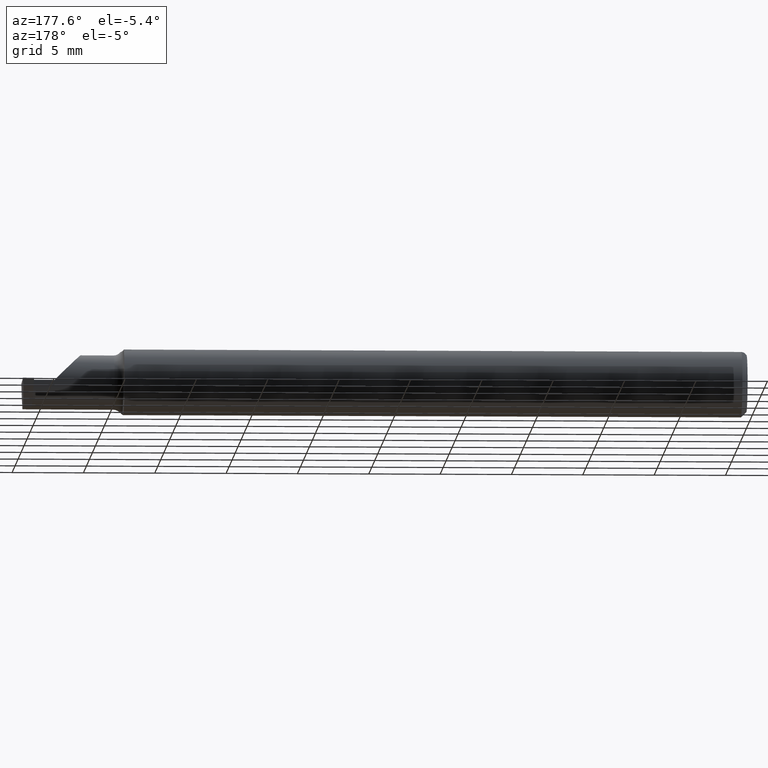
[diagram: clean part render]
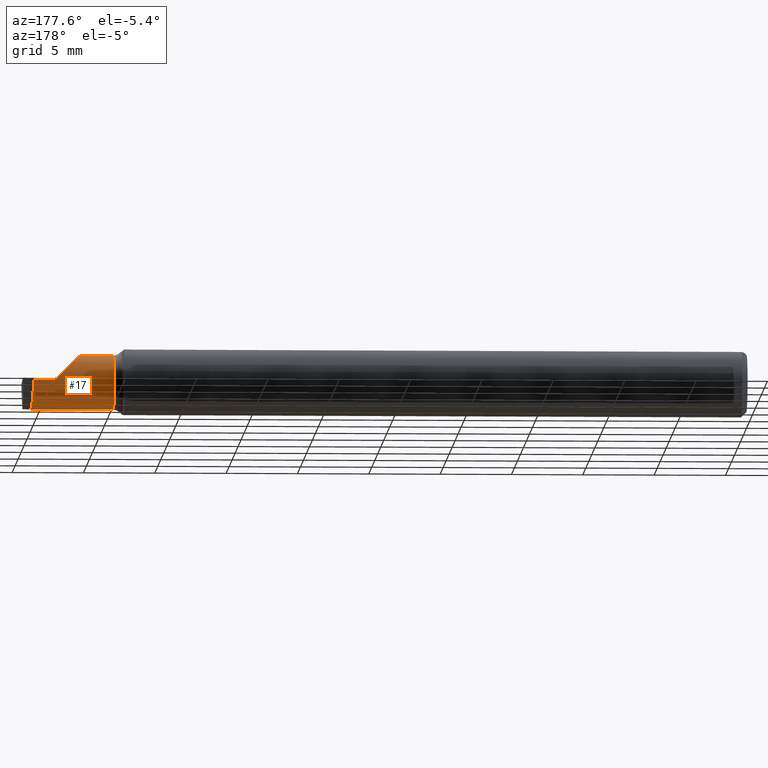
[diagram: same view with one face highlighted and labeled with its STEP entity id]
A machine part, auxiliary view. The second image highlights one B-rep face of the part: STEP entity #17.
In plain terms, the highlighted cylindrical surface (edge-blend (fillet) strip) has radius 1.905 mm, axis along (-1, -0, -0).
Its self-contained STEP definition (entity closure, byte-faithful):
#5 =( BOUNDED_CURVE ( )  B_SPLINE_CURVE ( 3, ( #224, #756, #652, #766 ),
 .UNSPECIFIED., .F., .T. ) 
 B_SPLINE_CURVE_WITH_KNOTS ( ( 4, 4 ),
 ( 0.000000000000000000, 1.570796326794896558 ),
 .UNSPECIFIED. ) 
 CURVE ( )  GEOMETRIC_REPRESENTATION_ITEM ( )  RATIONAL_B_SPLINE_CURVE ( ( 1.000000000000000000, 0.8047378541243649375, 0.8047378541243649375, 1.000000000000000000 ) ) 
 REPRESENTATION_ITEM ( '' )  );
#16 = VERTEX_POINT ( 'NONE', #27 ) ;
#17 = ADVANCED_FACE ( 'NONE', ( #263 ), #505, .T. ) ;
#21 = CARTESIAN_POINT ( 'NONE',  ( 1.744999999999999885, -0.04259999999999998510, 0.000000000000000000 ) ) ;
#27 = CARTESIAN_POINT ( 'NONE',  ( 1.970284083932823727, 0.02994487577554157814, -0.01903262984222200277 ) ) ;
#42 = LINE ( 'NONE', #83, #469 ) ;
#80 = ORIENTED_EDGE ( 'NONE', *, *, #453, .F. ) ;
#83 = CARTESIAN_POINT ( 'NONE',  ( 1.719999999999999973, -0.04259999999999998510, 0.07499999999999999722 ) ) ;
#91 = ORIENTED_EDGE ( 'NONE', *, *, #751, .F. ) ;
#95 = EDGE_CURVE ( 'NONE', #543, #665, #5, .T. ) ;
#96 = ORIENTED_EDGE ( 'NONE', *, *, #107, .F. ) ;
#98 = DIRECTION ( 'NONE',  ( -1.000000000000000000, -0.000000000000000000, -0.000000000000000000 ) ) ;
#107 = EDGE_CURVE ( 'NONE', #16, #498, #408, .T. ) ;
#109 = CIRCLE ( 'NONE', #206, 0.07499999999999999722 ) ;
#117 = CARTESIAN_POINT ( 'NONE',  ( 1.969499999999999806, -0.04259999999999998510, 0.000000000000000000 ) ) ;
#153 = CARTESIAN_POINT ( 'NONE',  ( 1.719999999999999973, 0.03240000000000001906, 3.429011037612604807E-17 ) ) ;
#155 = DIRECTION ( 'NONE',  ( 0.000000000000000000, 0.000000000000000000, 1.000000000000000000 ) ) ;
#158 = CARTESIAN_POINT ( 'NONE',  ( 1.835000000000000409, -0.04259999999999998510, 0.07499999999999999722 ) ) ;
#161 = CARTESIAN_POINT ( 'NONE',  ( 1.973213402547462803, -0.04260000000000001286, -0.07499999999999999722 ) ) ;
#181 = CARTESIAN_POINT ( 'NONE',  ( 1.744999999999999885, -0.04259999999999997122, -0.07500000000000001110 ) ) ;
#183 = ORIENTED_EDGE ( 'NONE', *, *, #600, .T. ) ;
#184 = CARTESIAN_POINT ( 'NONE',  ( 1.969499999999999806, 0.03240000000000000518, 3.428996833357358890E-17 ) ) ;
#206 = AXIS2_PLACEMENT_3D ( 'NONE', #21, #436, #499 ) ;
#207 = CARTESIAN_POINT ( 'NONE',  ( 1.972080687037212954, 0.02094495418688668148, -0.05333678008583653957 ) ) ;
#224 = CARTESIAN_POINT ( 'NONE',  ( 1.835000000000000409, -0.04259999999999998510, 0.07499999999999999722 ) ) ;
#242 = EDGE_LOOP ( 'NONE', ( #80, #310, #91, #539, #518, #708, #183, #96 ) ) ;
#263 = FACE_OUTER_BOUND ( 'NONE', #242, .T. ) ;
#268 = CARTESIAN_POINT ( 'NONE',  ( 1.973213402547462803, -0.04260000000000001286, -0.07499999999999999722 ) ) ;
#310 = ORIENTED_EDGE ( 'NONE', *, *, #317, .T. ) ;
#317 = EDGE_CURVE ( 'NONE', #583, #617, #728, .T. ) ;
#337 = CARTESIAN_POINT ( 'NONE',  ( 1.970027797685394821, 0.03157410243558823187, -0.01282266061343017780 ) ) ;
#354 = VECTOR ( 'NONE', #755, 39.37007874015748143 ) ;
#397 = DIRECTION ( 'NONE',  ( -1.000000000000000000, -0.000000000000000000, -0.000000000000000000 ) ) ;
#408 =( BOUNDED_CURVE ( )  B_SPLINE_CURVE ( 3, ( #508, #337, #753, #582 ),
 .UNSPECIFIED., .F., .T. ) 
 B_SPLINE_CURVE_WITH_KNOTS ( ( 4, 4 ),
 ( 4.455205321888861647, 4.711308219781928486 ),
 .UNSPECIFIED. ) 
 CURVE ( )  GEOMETRIC_REPRESENTATION_ITEM ( )  RATIONAL_B_SPLINE_CURVE ( ( 1.000000000000000000, 0.9945417399294778082, 0.9945417399294778082, 1.000000000000000000 ) ) 
 REPRESENTATION_ITEM ( '' )  );
#409 = CARTESIAN_POINT ( 'NONE',  ( 1.910000000000000142, 0.03240000000000002600, 1.102182119232621301E-17 ) ) ;
#436 = DIRECTION ( 'NONE',  ( -1.000000000000000000, -0.000000000000000000, -0.000000000000000000 ) ) ;
#449 = CARTESIAN_POINT ( 'NONE',  ( 1.969499999999999806, 0.03239999167003589087, -3.534818988851000062E-05 ) ) ;
#451 = LINE ( 'NONE', #153, #354 ) ;
#453 = EDGE_CURVE ( 'NONE', #583, #16, #626, .T. ) ;
#469 = VECTOR ( 'NONE', #397, 39.37007874015748143 ) ;
#491 = VERTEX_POINT ( 'NONE', #752 ) ;
#492 = EDGE_CURVE ( 'NONE', #665, #736, #451, .T. ) ;
#498 = VERTEX_POINT ( 'NONE', #449 ) ;
#499 = DIRECTION ( 'NONE',  ( 0.000000000000000000, 0.000000000000000000, 1.000000000000000000 ) ) ;
#505 = CYLINDRICAL_SURFACE ( 'NONE', #598, 0.07499999999999999722 ) ;
#508 = CARTESIAN_POINT ( 'NONE',  ( 1.970284083932823727, 0.02994487577554157814, -0.01903262984222200277 ) ) ;
#514 = EDGE_CURVE ( 'NONE', #543, #491, #42, .T. ) ;
#518 = ORIENTED_EDGE ( 'NONE', *, *, #95, .T. ) ;
#539 = ORIENTED_EDGE ( 'NONE', *, *, #514, .F. ) ;
#543 = VERTEX_POINT ( 'NONE', #158 ) ;
#582 = CARTESIAN_POINT ( 'NONE',  ( 1.969499999999999806, 0.03239999167003589087, -3.534818988851000062E-05 ) ) ;
#583 = VERTEX_POINT ( 'NONE', #161 ) ;
#598 = AXIS2_PLACEMENT_3D ( 'NONE', #643, #98, #155 ) ;
#600 = EDGE_CURVE ( 'NONE', #736, #498, #772, .T. ) ;
#603 = DIRECTION ( 'NONE',  ( 0.000000000000000000, 0.000000000000000000, 1.000000000000000000 ) ) ;
#617 = VERTEX_POINT ( 'NONE', #181 ) ;
#626 =( BOUNDED_CURVE ( )  B_SPLINE_CURVE ( 3, ( #268, #706, #207, #645 ),
 .UNSPECIFIED., .F., .T. ) 
 B_SPLINE_CURVE_WITH_KNOTS ( ( 4, 4 ),
 ( 3.140983202202990654, 4.455205321888858094 ),
 .UNSPECIFIED. ) 
 CURVE ( )  GEOMETRIC_REPRESENTATION_ITEM ( )  RATIONAL_B_SPLINE_CURVE ( ( 1.000000000000000000, 0.8611734602017921958, 0.8611734602017921958, 1.000000000000000000 ) ) 
 REPRESENTATION_ITEM ( '' )  );
#643 = CARTESIAN_POINT ( 'NONE',  ( 1.719999999999999973, -0.04259999999999998510, 0.000000000000000000 ) ) ;
#645 = CARTESIAN_POINT ( 'NONE',  ( 1.970284083932823727, 0.02994487577554157814, -0.01903262984222200277 ) ) ;
#652 = CARTESIAN_POINT ( 'NONE',  ( 1.866066017177982594, 0.03240000000000000518, 0.04393398282201787380 ) ) ;
#663 = DIRECTION ( 'NONE',  ( -1.000000000000000000, -0.000000000000000000, -0.000000000000000000 ) ) ;
#665 = VERTEX_POINT ( 'NONE', #409 ) ;
#675 = AXIS2_PLACEMENT_3D ( 'NONE', #117, #663, #603 ) ;
#679 = VECTOR ( 'NONE', #740, 39.37007874015748143 ) ;
#688 = CARTESIAN_POINT ( 'NONE',  ( 1.719999999999999973, -0.04259999999999997816, -0.07499999999999999722 ) ) ;
#706 = CARTESIAN_POINT ( 'NONE',  ( 1.973214534726833946, -0.007134900077140466333, -0.07500000000000003886 ) ) ;
#708 = ORIENTED_EDGE ( 'NONE', *, *, #492, .T. ) ;
#728 = LINE ( 'NONE', #688, #679 ) ;
#736 = VERTEX_POINT ( 'NONE', #184 ) ;
#740 = DIRECTION ( 'NONE',  ( -1.000000000000000000, -0.000000000000000000, -0.000000000000000000 ) ) ;
#751 = EDGE_CURVE ( 'NONE', #491, #617, #109, .T. ) ;
#752 = CARTESIAN_POINT ( 'NONE',  ( 1.744999999999999885, -0.04259999999999997816, 0.07500000000000001110 ) ) ;
#753 = CARTESIAN_POINT ( 'NONE',  ( 1.969765001967077600, 0.03239696580267936721, -0.006455479666460934261 ) ) ;
#755 = DIRECTION ( 'NONE',  ( 1.000000000000000000, 0.000000000000000000, 0.000000000000000000 ) ) ;
#756 = CARTESIAN_POINT ( 'NONE',  ( 1.835000000000000187, 0.001333982822017888053, 0.07499999999999998335 ) ) ;
#766 = CARTESIAN_POINT ( 'NONE',  ( 1.910000000000000142, 0.03240000000000002600, 1.102182119232621301E-17 ) ) ;
#772 = CIRCLE ( 'NONE', #675, 0.07499999999999999722 ) ;